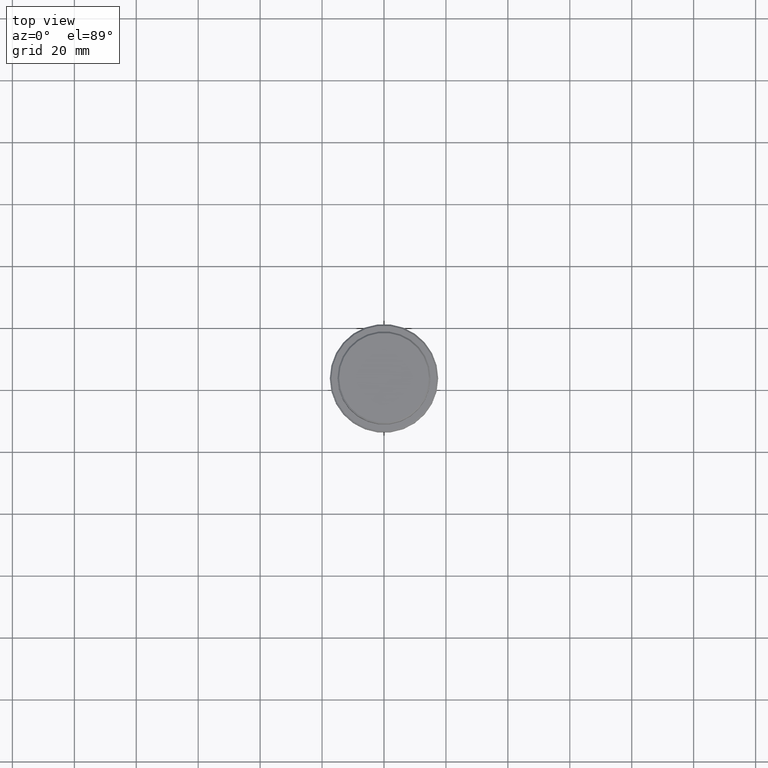
[diagram: clean part render]
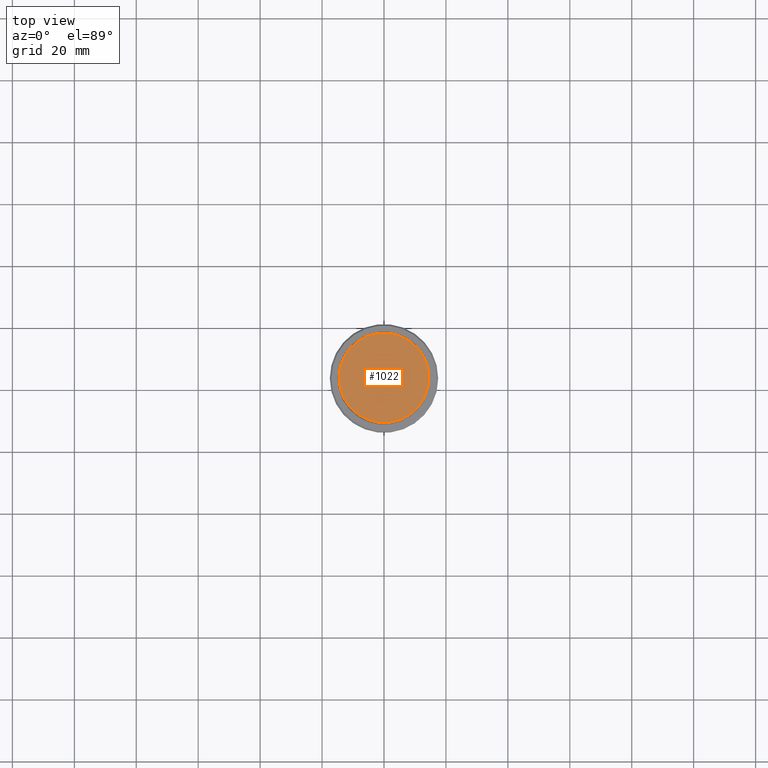
[diagram: same view with one face highlighted and labeled with its STEP entity id]
A machine part, top view. The second image highlights one B-rep face of the part: STEP entity #1022.
In plain terms, the highlighted planar face has unit normal (0, -0, 1).
Its self-contained STEP definition (entity closure, byte-faithful):
#10 = VERTEX_POINT ( 'NONE', #884 ) ;
#95 = CARTESIAN_POINT ( 'NONE',  ( 0.000000000000000000, 0.000000000000000000, 0.000000000000000000 ) ) ;
#102 = DIRECTION ( 'NONE',  ( 1.000000000000000000, 0.000000000000000000, 0.000000000000000000 ) ) ;
#235 = CARTESIAN_POINT ( 'NONE',  ( 0.000000000000000000, 0.000000000000000000, 0.000000000000000000 ) ) ;
#238 = EDGE_CURVE ( 'NONE', #10, #325, #480, .T. ) ;
#325 = VERTEX_POINT ( 'NONE', #866 ) ;
#447 = AXIS2_PLACEMENT_3D ( 'NONE', #1407, #878, #1312 ) ;
#470 = DIRECTION ( 'NONE',  ( 1.000000000000000000, 0.000000000000000000, 0.000000000000000000 ) ) ;
#480 = CIRCLE ( 'NONE', #1173, 14.49999999999998401 ) ;
#505 = AXIS2_PLACEMENT_3D ( 'NONE', #95, #651, #102 ) ;
#507 = EDGE_LOOP ( 'NONE', ( #626, #1346 ) ) ;
#626 = ORIENTED_EDGE ( 'NONE', *, *, #238, .T. ) ;
#651 = DIRECTION ( 'NONE',  ( -0.000000000000000000, -0.000000000000000000, 1.000000000000000000 ) ) ;
#708 = DIRECTION ( 'NONE',  ( -0.000000000000000000, -0.000000000000000000, 1.000000000000000000 ) ) ;
#768 = PLANE ( 'NONE',  #447 ) ;
#839 = EDGE_CURVE ( 'NONE', #325, #10, #1332, .T. ) ;
#866 = CARTESIAN_POINT ( 'NONE',  ( 14.49999999999998401, 1.806354028742345013E-15, 0.000000000000000000 ) ) ;
#878 = DIRECTION ( 'NONE',  ( 0.000000000000000000, -0.000000000000000000, 1.000000000000000000 ) ) ;
#884 = CARTESIAN_POINT ( 'NONE',  ( -14.49999999999998401, 0.000000000000000000, 0.000000000000000000 ) ) ;
#954 = FACE_OUTER_BOUND ( 'NONE', #507, .T. ) ;
#1022 = ADVANCED_FACE ( 'NONE', ( #954 ), #768, .T. ) ;
#1173 = AXIS2_PLACEMENT_3D ( 'NONE', #235, #708, #470 ) ;
#1312 = DIRECTION ( 'NONE',  ( 1.000000000000000000, 0.000000000000000000, 0.000000000000000000 ) ) ;
#1332 = CIRCLE ( 'NONE', #505, 14.49999999999998401 ) ;
#1346 = ORIENTED_EDGE ( 'NONE', *, *, #839, .T. ) ;
#1407 = CARTESIAN_POINT ( 'NONE',  ( 0.000000000000000000, 0.000000000000000000, 0.000000000000000000 ) ) ;